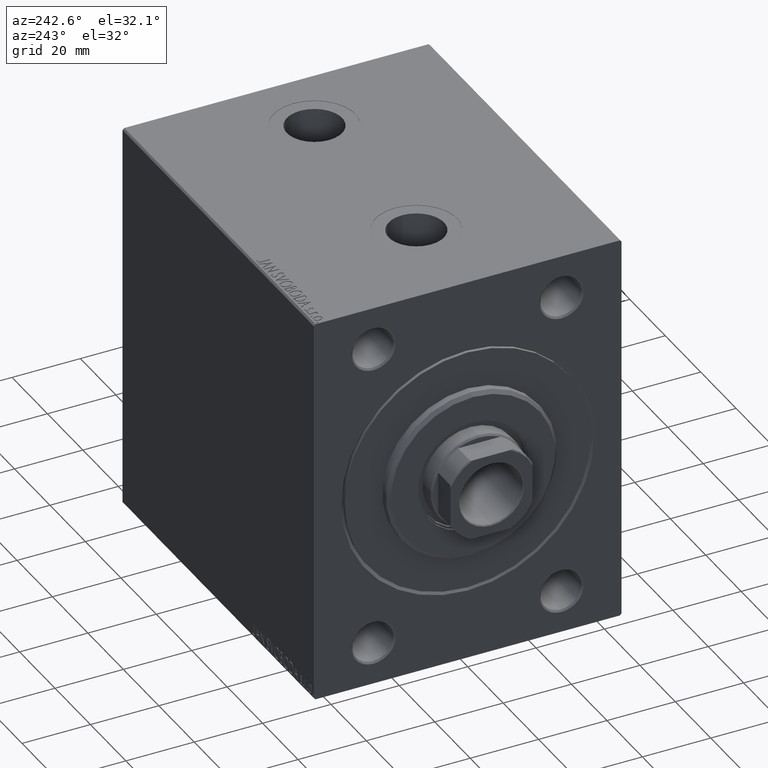
[diagram: clean part render]
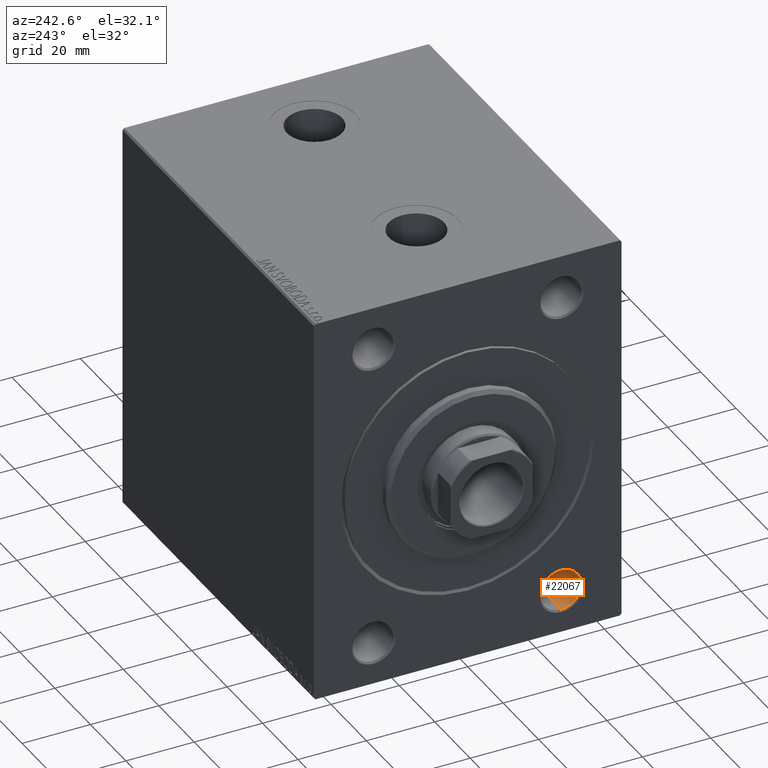
[diagram: same view with one face highlighted and labeled with its STEP entity id]
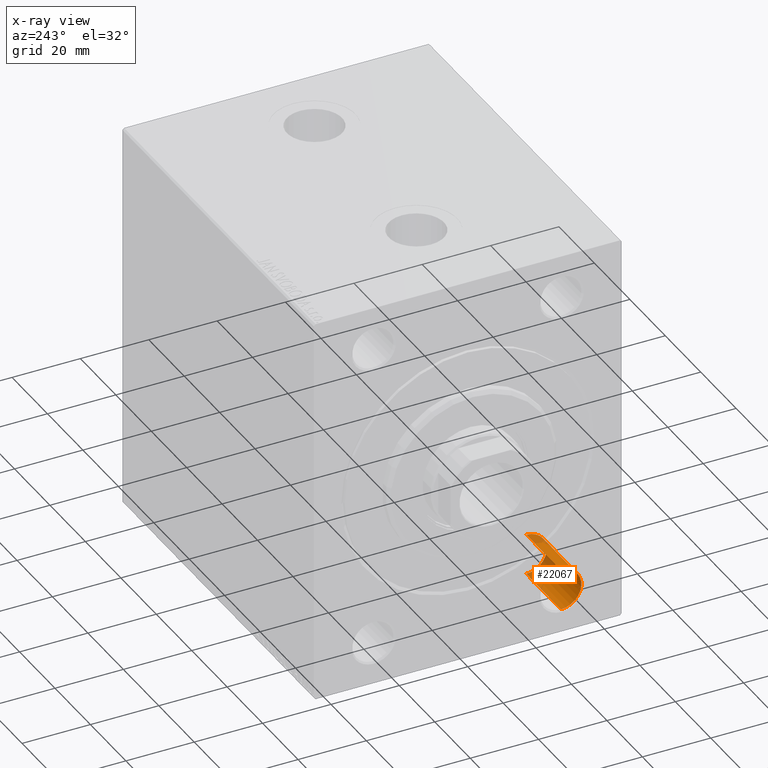
[diagram: x-ray of the same camera — body ghosted, the highlighted face saturated]
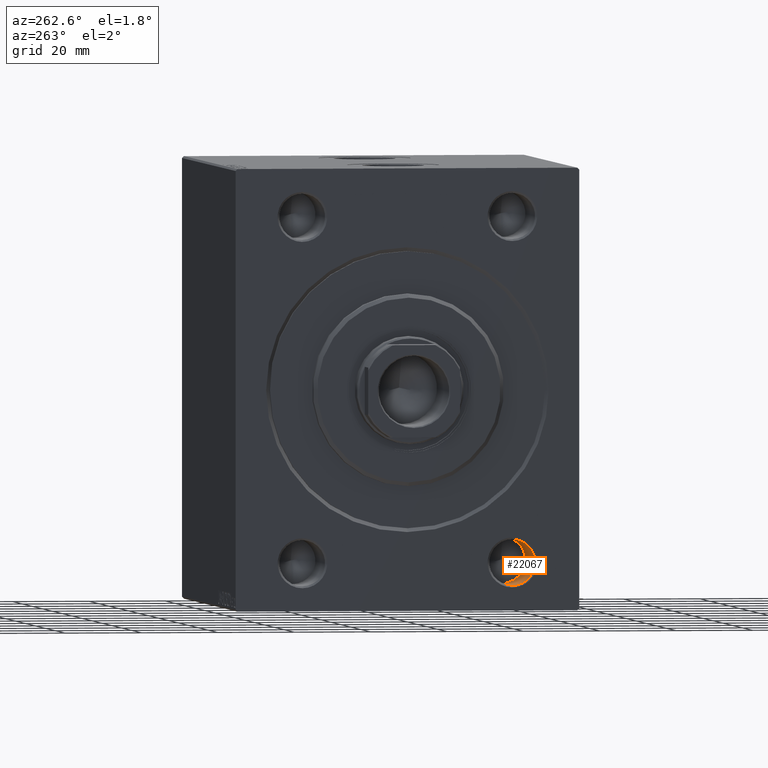
[diagram: same view with one face highlighted and labeled with its STEP entity id]
A machine part, auxiliary view. The second image highlights one B-rep face of the part: STEP entity #22067.
The next image is the same camera in x-ray: the body ghosted, the highlighted face saturated — about 23% of this face is hidden behind the body in this view.
A second angle (auxiliary view) of the same face is appended — the face is thin or edge-on in the first view.
In plain terms, the highlighted cylindrical surface (edge-blend (fillet) strip) has radius 6 mm, axis along (-1, -0, -0).
Its self-contained STEP definition (entity closure, byte-faithful):
#1058 = AXIS2_PLACEMENT_3D ( 'NONE', #16203, #6305, #36435 ) ;
#1717 = EDGE_CURVE ( 'NONE', #39994, #43517, #10419, .T. ) ;
#2464 = FACE_OUTER_BOUND ( 'NONE', #4372, .T. ) ;
#3996 = VECTOR ( 'NONE', #8366, 1000.000000000000000 ) ;
#4372 = EDGE_LOOP ( 'NONE', ( #15071, #43670, #39616, #17554 ) ) ;
#6305 = DIRECTION ( 'NONE',  ( -1.000000000000000000, 0.000000000000000000, 0.000000000000000000 ) ) ;
#8366 = DIRECTION ( 'NONE',  ( -1.000000000000000000, -0.000000000000000000, -0.000000000000000000 ) ) ;
#9447 = DIRECTION ( 'NONE',  ( -1.000000000000000000, -0.000000000000000000, -0.000000000000000000 ) ) ;
#9750 = AXIS2_PLACEMENT_3D ( 'NONE', #12920, #19878, #33145 ) ;
#9786 = EDGE_CURVE ( 'NONE', #39309, #13770, #10504, .T. ) ;
#10419 = CIRCLE ( 'NONE', #1058, 5.999999999999998224 ) ;
#10504 = CIRCLE ( 'NONE', #9750, 5.999999999999998224 ) ;
#10958 = DIRECTION ( 'NONE',  ( -1.000000000000000000, -0.000000000000000000, -0.000000000000000000 ) ) ;
#11572 = VECTOR ( 'NONE', #10958, 1000.000000000000000 ) ;
#12920 = CARTESIAN_POINT ( 'NONE',  ( 20.00000000000000000, -27.49999999999999645, -45.00000000000001421 ) ) ;
#13770 = VERTEX_POINT ( 'NONE', #31547 ) ;
#15071 = ORIENTED_EDGE ( 'NONE', *, *, #9786, .F. ) ;
#15374 = AXIS2_PLACEMENT_3D ( 'NONE', #26284, #9447, #23150 ) ;
#16203 = CARTESIAN_POINT ( 'NONE',  ( 0.5000000000000281997, -27.49999999999999645, -45.00000000000001421 ) ) ;
#17554 = ORIENTED_EDGE ( 'NONE', *, *, #26254, .F. ) ;
#19878 = DIRECTION ( 'NONE',  ( -1.000000000000000000, -0.000000000000000000, -0.000000000000000000 ) ) ;
#22067 = ADVANCED_FACE ( 'NONE', ( #2464 ), #36650, .F. ) ;
#23150 = DIRECTION ( 'NONE',  ( 0.000000000000000000, 0.000000000000000000, 1.000000000000000000 ) ) ;
#24436 = LINE ( 'NONE', #38157, #11572 ) ;
#26254 = EDGE_CURVE ( 'NONE', #13770, #43517, #35569, .T. ) ;
#26284 = CARTESIAN_POINT ( 'NONE',  ( 0.000000000000000000, -27.49999999999999645, -45.00000000000001421 ) ) ;
#26912 = CARTESIAN_POINT ( 'NONE',  ( 20.00000000000000000, -27.49999999999999645, -51.00000000000000711 ) ) ;
#31547 = CARTESIAN_POINT ( 'NONE',  ( 20.00000000000000000, -27.49999999999999645, -39.00000000000001421 ) ) ;
#33145 = DIRECTION ( 'NONE',  ( 0.000000000000000000, 0.000000000000000000, 1.000000000000000000 ) ) ;
#35569 = LINE ( 'NONE', #39384, #3996 ) ;
#36435 = DIRECTION ( 'NONE',  ( 0.000000000000000000, 0.000000000000000000, -1.000000000000000000 ) ) ;
#36650 = CYLINDRICAL_SURFACE ( 'NONE', #15374, 5.999999999999998224 ) ;
#38157 = CARTESIAN_POINT ( 'NONE',  ( 0.000000000000000000, -27.49999999999999645, -51.00000000000000711 ) ) ;
#39309 = VERTEX_POINT ( 'NONE', #26912 ) ;
#39384 = CARTESIAN_POINT ( 'NONE',  ( 0.000000000000000000, -27.49999999999999645, -39.00000000000001421 ) ) ;
#39616 = ORIENTED_EDGE ( 'NONE', *, *, #1717, .T. ) ;
#39994 = VERTEX_POINT ( 'NONE', #43641 ) ;
#41508 = CARTESIAN_POINT ( 'NONE',  ( 0.5000000000000281997, -27.49999999999999645, -39.00000000000001421 ) ) ;
#43517 = VERTEX_POINT ( 'NONE', #41508 ) ;
#43641 = CARTESIAN_POINT ( 'NONE',  ( 0.5000000000000281997, -27.49999999999999645, -51.00000000000000711 ) ) ;
#43670 = ORIENTED_EDGE ( 'NONE', *, *, #43995, .T. ) ;
#43995 = EDGE_CURVE ( 'NONE', #39309, #39994, #24436, .T. ) ;